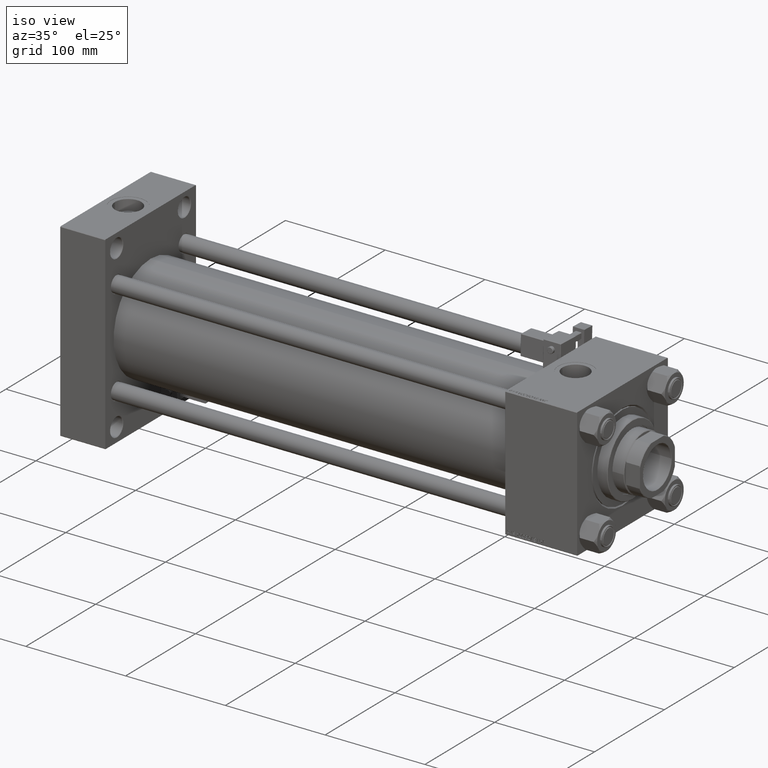
[diagram: clean part render]
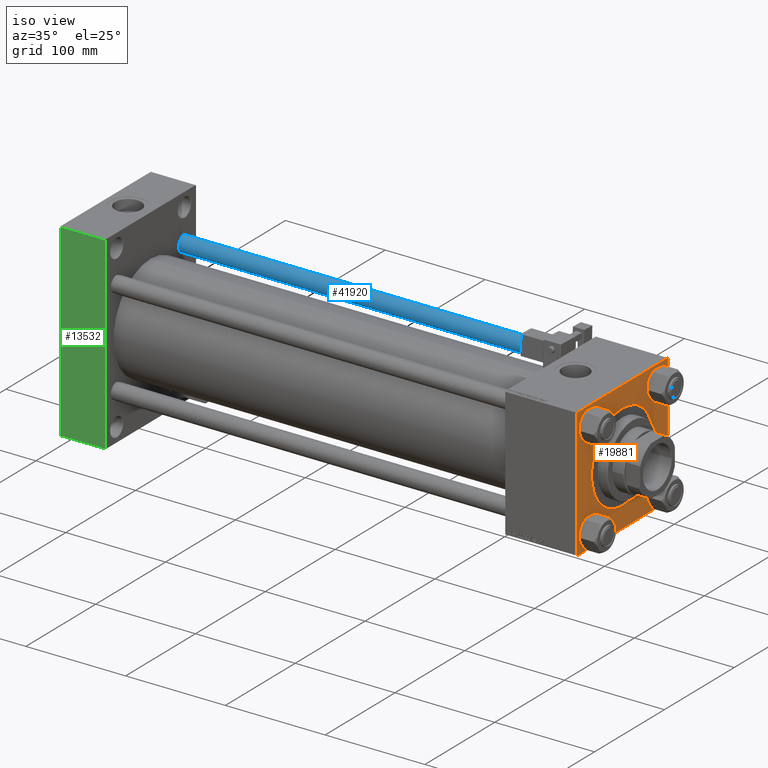
[diagram: same view with three faces highlighted in distinct colors, each labeled with its STEP entity id]
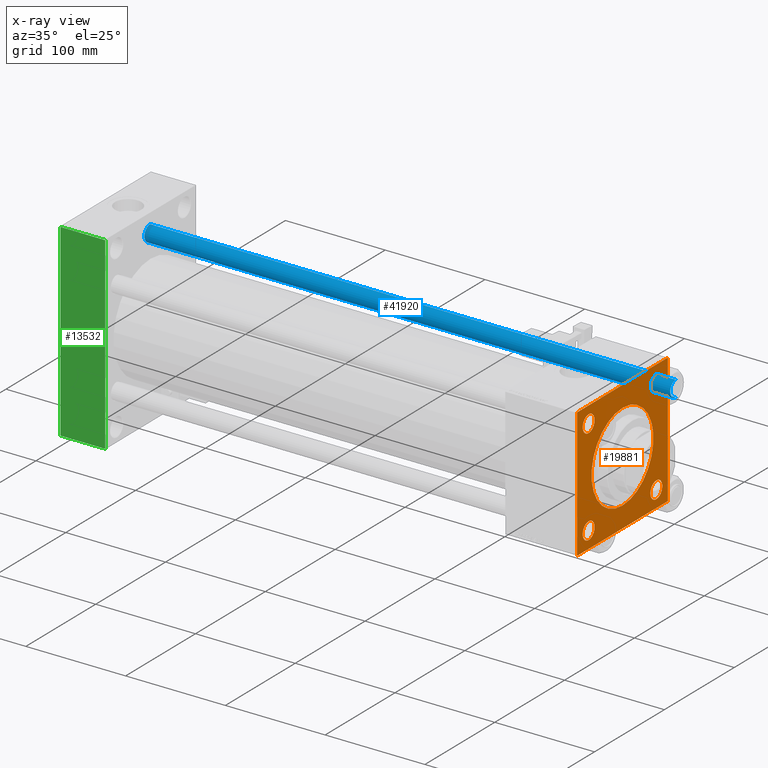
[diagram: x-ray of the same camera — body ghosted, the three highlighted faces saturated]
A machine part, iso view with three faces highlighted in distinct colors.
The next image is the same camera in x-ray (body ghosted, the three faces saturated) — at least one of them is partly hidden behind the body in this view.
Their STEP definitions:

[orange] entity #19881 — the highlighted planar face has unit normal (-1, 0, 0).
#311 = VECTOR ( 'NONE', #9528, 1000.000000000000114 ) ;
#572 = EDGE_CURVE ( 'NONE', #23882, #44154, #1061, .T. ) ;
#805 = VECTOR ( 'NONE', #3308, 1000.000000000000114 ) ;
#1002 = CARTESIAN_POINT ( 'NONE',  ( 518.0000000000000000, 64.49999999999991473, -64.99999999999998579 ) ) ;
#1061 = LINE ( 'NONE', #8296, #7401 ) ;
#1112 = EDGE_CURVE ( 'NONE', #34950, #22905, #35689, .T. ) ;
#1323 = DIRECTION ( 'NONE',  ( -0.000000000000000000, 0.7071067811865474617, 0.7071067811865474617 ) ) ;
#1525 = VECTOR ( 'NONE', #46438, 1000.000000000000000 ) ;
#2130 = CIRCLE ( 'NONE', #9215, 8.499999999999896971 ) ;
#2458 = EDGE_CURVE ( 'NONE', #51638, #22957, #49739, .T. ) ;
#3199 = CARTESIAN_POINT ( 'NONE',  ( 518.0000000000000000, 0.000000000000000000, 0.000000000000000000 ) ) ;
#3228 = EDGE_CURVE ( 'NONE', #37605, #6852, #47098, .T. ) ;
#3308 = DIRECTION ( 'NONE',  ( 0.000000000000000000, -0.7071067811865474617, 0.7071067811865474617 ) ) ;
#3376 = CARTESIAN_POINT ( 'NONE',  ( 518.0000000000000000, 0.000000000000000000, 0.000000000000000000 ) ) ;
#3460 = DIRECTION ( 'NONE',  ( 0.000000000000000000, 0.000000000000000000, 1.000000000000000000 ) ) ;
#3675 = AXIS2_PLACEMENT_3D ( 'NONE', #3376, #50434, #3460 ) ;
#4008 = ORIENTED_EDGE ( 'NONE', *, *, #18489, .T. ) ;
#4085 = DIRECTION ( 'NONE',  ( -0.000000000000000000, 0.000000000000000000, 1.000000000000000000 ) ) ;
#4883 = CARTESIAN_POINT ( 'NONE',  ( 518.0000000000000000, -64.49999999999991473, -65.00000000000001421 ) ) ;
#5188 = PLANE ( 'NONE',  #41820 ) ;
#5866 = DIRECTION ( 'NONE',  ( -1.000000000000000000, 0.000000000000000000, -0.000000000000000000 ) ) ;
#6092 = ORIENTED_EDGE ( 'NONE', *, *, #47759, .T. ) ;
#6273 = ORIENTED_EDGE ( 'NONE', *, *, #3228, .T. ) ;
#6550 = ORIENTED_EDGE ( 'NONE', *, *, #42842, .T. ) ;
#6741 = CARTESIAN_POINT ( 'NONE',  ( 518.0000000000000000, -48.44999999999999574, -48.45000000000003126 ) ) ;
#6852 = VERTEX_POINT ( 'NONE', #37609 ) ;
#7401 = VECTOR ( 'NONE', #42617, 1000.000000000000000 ) ;
#7478 = VECTOR ( 'NONE', #1323, 1000.000000000000114 ) ;
#8060 = CARTESIAN_POINT ( 'NONE',  ( 518.0000000000000000, -64.50000000000002842, 65.00000000000000000 ) ) ;
#8089 = CARTESIAN_POINT ( 'NONE',  ( 518.0000000000000000, -48.44999999999999574, 39.95000000000013074 ) ) ;
#8296 = CARTESIAN_POINT ( 'NONE',  ( 518.0000000000000000, 65.00000000000002842, -64.99999999999998579 ) ) ;
#8858 = EDGE_CURVE ( 'NONE', #54801, #11376, #52658, .T. ) ;
#8945 = CARTESIAN_POINT ( 'NONE',  ( 518.0000000000000000, 65.00000000000002842, 64.50000000000001421 ) ) ;
#8969 = ORIENTED_EDGE ( 'NONE', *, *, #13089, .T. ) ;
#9215 = AXIS2_PLACEMENT_3D ( 'NONE', #6741, #23631, #40521 ) ;
#9528 = DIRECTION ( 'NONE',  ( -0.000000000000000000, -0.7071067811865573427, -0.7071067811865376918 ) ) ;
#9854 = CIRCLE ( 'NONE', #3675, 44.25000000000006395 ) ;
#10231 = EDGE_CURVE ( 'NONE', #22905, #34950, #12936, .T. ) ;
#10276 = EDGE_LOOP ( 'NONE', ( #6092, #29891 ) ) ;
#11376 = VERTEX_POINT ( 'NONE', #49866 ) ;
#11391 = CARTESIAN_POINT ( 'NONE',  ( 518.0000000000000000, -48.44999999999999574, 56.94999999999992468 ) ) ;
#11973 = CIRCLE ( 'NONE', #50030, 8.499999999999896971 ) ;
#12196 = EDGE_LOOP ( 'NONE', ( #16599, #21312 ) ) ;
#12386 = EDGE_LOOP ( 'NONE', ( #38188, #8969, #48483, #46563, #15065, #48099, #44861, #6550 ) ) ;
#12600 = DIRECTION ( 'NONE',  ( 0.000000000000000000, 0.000000000000000000, 1.000000000000000000 ) ) ;
#12936 = CIRCLE ( 'NONE', #35050, 8.499999999999896971 ) ;
#13089 = EDGE_CURVE ( 'NONE', #20399, #44154, #30080, .T. ) ;
#13494 = DIRECTION ( 'NONE',  ( -1.000000000000000000, 0.000000000000000000, -0.000000000000000000 ) ) ;
#14232 = LINE ( 'NONE', #51622, #311 ) ;
#14241 = EDGE_CURVE ( 'NONE', #46400, #30360, #38898, .T. ) ;
#14368 = AXIS2_PLACEMENT_3D ( 'NONE', #49600, #49342, #41286 ) ;
#14527 = CARTESIAN_POINT ( 'NONE',  ( 518.0000000000000000, 65.00000000000002842, -64.49999999999987210 ) ) ;
#15065 = ORIENTED_EDGE ( 'NONE', *, *, #44013, .F. ) ;
#15953 = VERTEX_POINT ( 'NONE', #8945 ) ;
#16486 = DIRECTION ( 'NONE',  ( -1.000000000000000000, 0.000000000000000000, -0.000000000000000000 ) ) ;
#16599 = ORIENTED_EDGE ( 'NONE', *, *, #10231, .T. ) ;
#17027 = EDGE_CURVE ( 'NONE', #11376, #54801, #9854, .T. ) ;
#18454 = ORIENTED_EDGE ( 'NONE', *, *, #8858, .T. ) ;
#18489 = EDGE_CURVE ( 'NONE', #22957, #51638, #29355, .T. ) ;
#19881 = ADVANCED_FACE ( 'NONE', ( #42303, #47286, #46454, #42569, #25942, #42849 ), #5188, .F. ) ;
#20107 = DIRECTION ( 'NONE',  ( 0.000000000000000000, 0.000000000000000000, 1.000000000000000000 ) ) ;
#20399 = VERTEX_POINT ( 'NONE', #22021 ) ;
#20895 = CARTESIAN_POINT ( 'NONE',  ( 518.0000000000000000, -64.99999999999998579, 65.00000000000000000 ) ) ;
#21312 = ORIENTED_EDGE ( 'NONE', *, *, #1112, .T. ) ;
#22021 = CARTESIAN_POINT ( 'NONE',  ( 518.0000000000000000, -64.99999999999998579, -64.49999999999997158 ) ) ;
#22082 = CARTESIAN_POINT ( 'NONE',  ( 518.0000000000000000, 0.000000000000000000, 0.000000000000000000 ) ) ;
#22155 = EDGE_CURVE ( 'NONE', #6852, #37605, #2130, .T. ) ;
#22479 = VECTOR ( 'NONE', #47405, 1000.000000000000000 ) ;
#22905 = VERTEX_POINT ( 'NONE', #35817 ) ;
#22957 = VERTEX_POINT ( 'NONE', #8089 ) ;
#23631 = DIRECTION ( 'NONE',  ( -1.000000000000000000, 0.000000000000000000, -0.000000000000000000 ) ) ;
#23882 = VERTEX_POINT ( 'NONE', #1002 ) ;
#24080 = CARTESIAN_POINT ( 'NONE',  ( 518.0000000000000000, 64.50000000000002842, 65.00000000000001421 ) ) ;
#24985 = DIRECTION ( 'NONE',  ( -1.000000000000000000, 0.000000000000000000, -0.000000000000000000 ) ) ;
#25586 = LINE ( 'NONE', #20895, #43086 ) ;
#25772 = EDGE_CURVE ( 'NONE', #23882, #32877, #43167, .T. ) ;
#25864 = CARTESIAN_POINT ( 'NONE',  ( 518.0000000000000000, 48.45000000000000995, -48.45000000000001705 ) ) ;
#25942 = FACE_BOUND ( 'NONE', #44023, .T. ) ;
#27030 = AXIS2_PLACEMENT_3D ( 'NONE', #3199, #16486, #20107 ) ;
#27723 = EDGE_CURVE ( 'NONE', #38244, #51208, #11973, .T. ) ;
#27962 = LINE ( 'NONE', #24080, #805 ) ;
#29355 = CIRCLE ( 'NONE', #14368, 8.499999999999896971 ) ;
#29645 = CARTESIAN_POINT ( 'NONE',  ( 518.0000000000000000, 48.45000000000000995, -39.95000000000011653 ) ) ;
#29891 = ORIENTED_EDGE ( 'NONE', *, *, #27723, .T. ) ;
#30080 = LINE ( 'NONE', #4883, #1525 ) ;
#30360 = VERTEX_POINT ( 'NONE', #8060 ) ;
#30411 = CARTESIAN_POINT ( 'NONE',  ( 518.0000000000000000, 65.00000000000002842, -64.49999999999987210 ) ) ;
#30600 = CARTESIAN_POINT ( 'NONE',  ( 518.0000000000000000, 48.45000000000000995, 48.45000000000001705 ) ) ;
#31254 = ORIENTED_EDGE ( 'NONE', *, *, #22155, .T. ) ;
#31976 = EDGE_CURVE ( 'NONE', #43802, #20399, #25586, .T. ) ;
#32246 = CIRCLE ( 'NONE', #44636, 8.499999999999896971 ) ;
#32877 = VERTEX_POINT ( 'NONE', #14527 ) ;
#32989 = EDGE_LOOP ( 'NONE', ( #6273, #31254 ) ) ;
#33907 = DIRECTION ( 'NONE',  ( 0.000000000000000000, 0.000000000000000000, 1.000000000000000000 ) ) ;
#34652 = LINE ( 'NONE', #51288, #22479 ) ;
#34950 = VERTEX_POINT ( 'NONE', #29645 ) ;
#35050 = AXIS2_PLACEMENT_3D ( 'NONE', #54359, #24985, #46054 ) ;
#35689 = CIRCLE ( 'NONE', #37411, 8.499999999999896971 ) ;
#35817 = CARTESIAN_POINT ( 'NONE',  ( 518.0000000000000000, 48.45000000000000995, -56.94999999999991047 ) ) ;
#36177 = DIRECTION ( 'NONE',  ( 0.000000000000000000, 0.000000000000000000, 1.000000000000000000 ) ) ;
#36251 = ORIENTED_EDGE ( 'NONE', *, *, #2458, .T. ) ;
#37411 = AXIS2_PLACEMENT_3D ( 'NONE', #25864, #38323, #33907 ) ;
#37605 = VERTEX_POINT ( 'NONE', #47649 ) ;
#37609 = CARTESIAN_POINT ( 'NONE',  ( 518.0000000000000000, -48.44999999999999574, -39.95000000000013074 ) ) ;
#37775 = DIRECTION ( 'NONE',  ( 0.000000000000000000, 0.000000000000000000, -1.000000000000000000 ) ) ;
#38188 = ORIENTED_EDGE ( 'NONE', *, *, #31976, .T. ) ;
#38244 = VERTEX_POINT ( 'NONE', #44940 ) ;
#38323 = DIRECTION ( 'NONE',  ( -1.000000000000000000, 0.000000000000000000, -0.000000000000000000 ) ) ;
#38668 = CARTESIAN_POINT ( 'NONE',  ( 518.0000000000000000, 48.45000000000000995, 39.95000000000011653 ) ) ;
#38898 = LINE ( 'NONE', #54708, #39483 ) ;
#39483 = VECTOR ( 'NONE', #42774, 1000.000000000000000 ) ;
#39999 = AXIS2_PLACEMENT_3D ( 'NONE', #47699, #5866, #47409 ) ;
#40362 = EDGE_CURVE ( 'NONE', #15953, #46400, #27962, .T. ) ;
#40521 = DIRECTION ( 'NONE',  ( 0.000000000000000000, 0.000000000000000000, 1.000000000000000000 ) ) ;
#41286 = DIRECTION ( 'NONE',  ( 0.000000000000000000, 0.000000000000000000, 1.000000000000000000 ) ) ;
#41820 = AXIS2_PLACEMENT_3D ( 'NONE', #22082, #13494, #4085 ) ;
#42245 = CARTESIAN_POINT ( 'NONE',  ( 518.0000000000000000, -64.49999999999991473, -65.00000000000001421 ) ) ;
#42303 = FACE_BOUND ( 'NONE', #32989, .T. ) ;
#42516 = DIRECTION ( 'NONE',  ( -1.000000000000000000, 0.000000000000000000, -0.000000000000000000 ) ) ;
#42569 = FACE_BOUND ( 'NONE', #46831, .T. ) ;
#42617 = DIRECTION ( 'NONE',  ( 0.000000000000000000, -1.000000000000000000, -2.135044278125300850E-16 ) ) ;
#42774 = DIRECTION ( 'NONE',  ( 0.000000000000000000, -1.000000000000000000, -1.067522139062650425E-16 ) ) ;
#42842 = EDGE_CURVE ( 'NONE', #30360, #43802, #14232, .T. ) ;
#42849 = FACE_OUTER_BOUND ( 'NONE', #12386, .T. ) ;
#43086 = VECTOR ( 'NONE', #37775, 1000.000000000000000 ) ;
#43167 = LINE ( 'NONE', #30411, #7478 ) ;
#43802 = VERTEX_POINT ( 'NONE', #54622 ) ;
#43897 = CARTESIAN_POINT ( 'NONE',  ( 518.0000000000000000, -48.44999999999999574, -48.45000000000003126 ) ) ;
#44013 = EDGE_CURVE ( 'NONE', #15953, #32877, #34652, .T. ) ;
#44023 = EDGE_LOOP ( 'NONE', ( #18454, #53349 ) ) ;
#44031 = CARTESIAN_POINT ( 'NONE',  ( 518.0000000000000000, 0.000000000000000000, -44.25000000000006395 ) ) ;
#44154 = VERTEX_POINT ( 'NONE', #42245 ) ;
#44197 = CARTESIAN_POINT ( 'NONE',  ( 518.0000000000000000, 64.50000000000002842, 65.00000000000001421 ) ) ;
#44636 = AXIS2_PLACEMENT_3D ( 'NONE', #30600, #42516, #12600 ) ;
#44861 = ORIENTED_EDGE ( 'NONE', *, *, #14241, .T. ) ;
#44940 = CARTESIAN_POINT ( 'NONE',  ( 518.0000000000000000, 48.45000000000000995, 56.94999999999991047 ) ) ;
#46054 = DIRECTION ( 'NONE',  ( 0.000000000000000000, 0.000000000000000000, 1.000000000000000000 ) ) ;
#46400 = VERTEX_POINT ( 'NONE', #44197 ) ;
#46438 = DIRECTION ( 'NONE',  ( 0.000000000000000000, 0.7071067811865672237, -0.7071067811865279218 ) ) ;
#46454 = FACE_BOUND ( 'NONE', #10276, .T. ) ;
#46563 = ORIENTED_EDGE ( 'NONE', *, *, #25772, .T. ) ;
#46831 = EDGE_LOOP ( 'NONE', ( #4008, #36251 ) ) ;
#47098 = CIRCLE ( 'NONE', #54185, 8.499999999999896971 ) ;
#47286 = FACE_BOUND ( 'NONE', #12196, .T. ) ;
#47405 = DIRECTION ( 'NONE',  ( 0.000000000000000000, 0.000000000000000000, -1.000000000000000000 ) ) ;
#47409 = DIRECTION ( 'NONE',  ( 0.000000000000000000, 0.000000000000000000, 1.000000000000000000 ) ) ;
#47649 = CARTESIAN_POINT ( 'NONE',  ( 518.0000000000000000, -48.44999999999999574, -56.94999999999992468 ) ) ;
#47699 = CARTESIAN_POINT ( 'NONE',  ( 518.0000000000000000, -48.44999999999999574, 48.45000000000003126 ) ) ;
#47759 = EDGE_CURVE ( 'NONE', #51208, #38244, #32246, .T. ) ;
#48099 = ORIENTED_EDGE ( 'NONE', *, *, #40362, .T. ) ;
#48483 = ORIENTED_EDGE ( 'NONE', *, *, #572, .F. ) ;
#48603 = DIRECTION ( 'NONE',  ( 0.000000000000000000, 0.000000000000000000, 1.000000000000000000 ) ) ;
#49202 = CARTESIAN_POINT ( 'NONE',  ( 518.0000000000000000, 48.45000000000000995, 48.45000000000001705 ) ) ;
#49342 = DIRECTION ( 'NONE',  ( -1.000000000000000000, 0.000000000000000000, -0.000000000000000000 ) ) ;
#49476 = DIRECTION ( 'NONE',  ( -1.000000000000000000, 0.000000000000000000, -0.000000000000000000 ) ) ;
#49600 = CARTESIAN_POINT ( 'NONE',  ( 518.0000000000000000, -48.44999999999999574, 48.45000000000003126 ) ) ;
#49739 = CIRCLE ( 'NONE', #39999, 8.499999999999896971 ) ;
#49866 = CARTESIAN_POINT ( 'NONE',  ( 518.0000000000000000, 5.419062086227046872E-15, 44.25000000000006395 ) ) ;
#50030 = AXIS2_PLACEMENT_3D ( 'NONE', #49202, #49476, #36177 ) ;
#50434 = DIRECTION ( 'NONE',  ( -1.000000000000000000, 0.000000000000000000, -0.000000000000000000 ) ) ;
#51208 = VERTEX_POINT ( 'NONE', #38668 ) ;
#51288 = CARTESIAN_POINT ( 'NONE',  ( 518.0000000000000000, 65.00000000000002842, 65.00000000000001421 ) ) ;
#51622 = CARTESIAN_POINT ( 'NONE',  ( 518.0000000000000000, -64.99999999999998579, 64.50000000000005684 ) ) ;
#51638 = VERTEX_POINT ( 'NONE', #11391 ) ;
#52470 = DIRECTION ( 'NONE',  ( -1.000000000000000000, 0.000000000000000000, -0.000000000000000000 ) ) ;
#52658 = CIRCLE ( 'NONE', #27030, 44.25000000000006395 ) ;
#53349 = ORIENTED_EDGE ( 'NONE', *, *, #17027, .T. ) ;
#54185 = AXIS2_PLACEMENT_3D ( 'NONE', #43897, #52470, #48603 ) ;
#54359 = CARTESIAN_POINT ( 'NONE',  ( 518.0000000000000000, 48.45000000000000995, -48.45000000000001705 ) ) ;
#54622 = CARTESIAN_POINT ( 'NONE',  ( 518.0000000000000000, -64.99999999999998579, 64.50000000000005684 ) ) ;
#54708 = CARTESIAN_POINT ( 'NONE',  ( 518.0000000000000000, 65.00000000000002842, 65.00000000000001421 ) ) ;
#54801 = VERTEX_POINT ( 'NONE', #44031 ) ;

[blue] entity #41920 — the highlighted cylindrical surface (edge-blend (fillet) strip) has radius 8 mm, axis along (1, 0, 0).
#711 = DIRECTION ( 'NONE',  ( 0.000000000000000000, 0.000000000000000000, -1.000000000000000000 ) ) ;
#1033 = VERTEX_POINT ( 'NONE', #11526 ) ;
#1206 = ORIENTED_EDGE ( 'NONE', *, *, #7679, .T. ) ;
#1222 = CARTESIAN_POINT ( 'NONE',  ( 8.000000000000000000, 9.797174393178825657E-16, 0.5000000000000559552 ) ) ;
#2764 = VERTEX_POINT ( 'NONE', #13214 ) ;
#5222 = EDGE_CURVE ( 'NONE', #28798, #1033, #42748, .T. ) ;
#5453 = VERTEX_POINT ( 'NONE', #7878 ) ;
#5622 = CYLINDRICAL_SURFACE ( 'NONE', #22177, 8.000000000000000000 ) ;
#6241 = CARTESIAN_POINT ( 'NONE',  ( 0.000000000000000000, 0.000000000000000000, 0.5000000000000559552 ) ) ;
#7679 = EDGE_CURVE ( 'NONE', #2764, #5453, #29618, .T. ) ;
#7830 = VECTOR ( 'NONE', #32670, 1000.000000000000000 ) ;
#7878 = CARTESIAN_POINT ( 'NONE',  ( 8.000000000000000000, 9.797174393178825657E-16, 527.5000000000001137 ) ) ;
#10937 = DIRECTION ( 'NONE',  ( 1.000000000000000000, 0.000000000000000000, 0.000000000000000000 ) ) ;
#11526 = CARTESIAN_POINT ( 'NONE',  ( -8.000000000000000000, 0.000000000000000000, 0.5000000000000559552 ) ) ;
#13214 = CARTESIAN_POINT ( 'NONE',  ( -8.000000000000000000, 0.000000000000000000, 527.5000000000001137 ) ) ;
#13953 = CARTESIAN_POINT ( 'NONE',  ( 0.000000000000000000, 0.000000000000000000, 528.0000000000000000 ) ) ;
#15516 = AXIS2_PLACEMENT_3D ( 'NONE', #25639, #711, #35057 ) ;
#16383 = DIRECTION ( 'NONE',  ( -0.000000000000000000, -0.000000000000000000, -1.000000000000000000 ) ) ;
#22177 = AXIS2_PLACEMENT_3D ( 'NONE', #13953, #30830, #47740 ) ;
#24361 = LINE ( 'NONE', #51131, #7830 ) ;
#25639 = CARTESIAN_POINT ( 'NONE',  ( 0.000000000000000000, 0.000000000000000000, 527.5000000000001137 ) ) ;
#28791 = ORIENTED_EDGE ( 'NONE', *, *, #5222, .T. ) ;
#28798 = VERTEX_POINT ( 'NONE', #1222 ) ;
#29618 = CIRCLE ( 'NONE', #15516, 8.000000000000000000 ) ;
#29806 = EDGE_LOOP ( 'NONE', ( #1206, #31429, #28791, #37365 ) ) ;
#30281 = EDGE_CURVE ( 'NONE', #2764, #1033, #37394, .T. ) ;
#30830 = DIRECTION ( 'NONE',  ( -0.000000000000000000, -0.000000000000000000, -1.000000000000000000 ) ) ;
#31429 = ORIENTED_EDGE ( 'NONE', *, *, #35110, .T. ) ;
#32670 = DIRECTION ( 'NONE',  ( -0.000000000000000000, -0.000000000000000000, -1.000000000000000000 ) ) ;
#35057 = DIRECTION ( 'NONE',  ( 1.000000000000000000, 0.000000000000000000, 0.000000000000000000 ) ) ;
#35110 = EDGE_CURVE ( 'NONE', #5453, #28798, #24361, .T. ) ;
#37365 = ORIENTED_EDGE ( 'NONE', *, *, #30281, .F. ) ;
#37394 = LINE ( 'NONE', #54310, #50953 ) ;
#41920 = ADVANCED_FACE ( 'NONE', ( #51894 ), #5622, .T. ) ;
#42748 = CIRCLE ( 'NONE', #49845, 8.000000000000000000 ) ;
#44728 = DIRECTION ( 'NONE',  ( -0.000000000000000000, -0.000000000000000000, 1.000000000000000000 ) ) ;
#47740 = DIRECTION ( 'NONE',  ( -1.000000000000000000, 0.000000000000000000, 0.000000000000000000 ) ) ;
#49845 = AXIS2_PLACEMENT_3D ( 'NONE', #6241, #44728, #10937 ) ;
#50953 = VECTOR ( 'NONE', #16383, 1000.000000000000000 ) ;
#51131 = CARTESIAN_POINT ( 'NONE',  ( 8.000000000000000000, 9.797174393178825657E-16, 528.0000000000000000 ) ) ;
#51894 = FACE_OUTER_BOUND ( 'NONE', #29806, .T. ) ;
#54310 = CARTESIAN_POINT ( 'NONE',  ( -8.000000000000000000, 0.000000000000000000, 528.0000000000000000 ) ) ;

[green] entity #13532 — the highlighted planar face has unit normal (0, 1, 0).
#258 = CARTESIAN_POINT ( 'NONE',  ( 45.00000000000000000, -64.99999999999998579, 94.49999999999992895 ) ) ;
#599 = EDGE_LOOP ( 'NONE', ( #20326, #26660, #31422, #3479 ) ) ;
#1721 = CARTESIAN_POINT ( 'NONE',  ( 0.000000000000000000, -64.99999999999998579, -94.50000000000004263 ) ) ;
#3479 = ORIENTED_EDGE ( 'NONE', *, *, #23984, .T. ) ;
#3765 = DIRECTION ( 'NONE',  ( 1.000000000000000000, 0.000000000000000000, 0.000000000000000000 ) ) ;
#6553 = CARTESIAN_POINT ( 'NONE',  ( 45.00000000000000000, -64.99999999999998579, 94.49999999999992895 ) ) ;
#7332 = CARTESIAN_POINT ( 'NONE',  ( 0.000000000000000000, -64.99999999999998579, 94.99999999999995737 ) ) ;
#7978 = CARTESIAN_POINT ( 'NONE',  ( 45.00000000000000000, -64.99999999999998579, -94.50000000000004263 ) ) ;
#13532 = ADVANCED_FACE ( 'NONE', ( #36105 ), #36637, .F. ) ;
#13871 = VECTOR ( 'NONE', #38601, 1000.000000000000000 ) ;
#13894 = VERTEX_POINT ( 'NONE', #7978 ) ;
#15423 = DIRECTION ( 'NONE',  ( -1.000000000000000000, 0.000000000000000000, 0.000000000000000000 ) ) ;
#15895 = DIRECTION ( 'NONE',  ( 0.000000000000000000, -0.000000000000000000, 1.000000000000000000 ) ) ;
#17116 = VECTOR ( 'NONE', #15423, 1000.000000000000000 ) ;
#17737 = EDGE_CURVE ( 'NONE', #48158, #13894, #20409, .T. ) ;
#20326 = ORIENTED_EDGE ( 'NONE', *, *, #21218, .T. ) ;
#20409 = LINE ( 'NONE', #37278, #40844 ) ;
#20829 = VERTEX_POINT ( 'NONE', #258 ) ;
#21218 = EDGE_CURVE ( 'NONE', #53145, #48158, #45544, .T. ) ;
#23554 = AXIS2_PLACEMENT_3D ( 'NONE', #36917, #53828, #15895 ) ;
#23984 = EDGE_CURVE ( 'NONE', #20829, #53145, #32013, .T. ) ;
#26660 = ORIENTED_EDGE ( 'NONE', *, *, #17737, .T. ) ;
#26838 = VECTOR ( 'NONE', #49163, 1000.000000000000000 ) ;
#31422 = ORIENTED_EDGE ( 'NONE', *, *, #51563, .F. ) ;
#32013 = LINE ( 'NONE', #6553, #17116 ) ;
#34448 = CARTESIAN_POINT ( 'NONE',  ( 0.000000000000000000, -64.99999999999998579, 94.49999999999992895 ) ) ;
#34726 = LINE ( 'NONE', #51359, #13871 ) ;
#36105 = FACE_OUTER_BOUND ( 'NONE', #599, .T. ) ;
#36637 = PLANE ( 'NONE',  #23554 ) ;
#36917 = CARTESIAN_POINT ( 'NONE',  ( 45.00000000000000000, -64.99999999999998579, 94.99999999999995737 ) ) ;
#37278 = CARTESIAN_POINT ( 'NONE',  ( 45.00000000000000000, -64.99999999999998579, -94.50000000000004263 ) ) ;
#38601 = DIRECTION ( 'NONE',  ( 0.000000000000000000, 0.000000000000000000, -1.000000000000000000 ) ) ;
#40844 = VECTOR ( 'NONE', #3765, 1000.000000000000000 ) ;
#45544 = LINE ( 'NONE', #7332, #26838 ) ;
#48158 = VERTEX_POINT ( 'NONE', #1721 ) ;
#49163 = DIRECTION ( 'NONE',  ( 0.000000000000000000, 0.000000000000000000, -1.000000000000000000 ) ) ;
#51359 = CARTESIAN_POINT ( 'NONE',  ( 45.00000000000000000, -64.99999999999998579, 94.99999999999995737 ) ) ;
#51563 = EDGE_CURVE ( 'NONE', #20829, #13894, #34726, .T. ) ;
#53145 = VERTEX_POINT ( 'NONE', #34448 ) ;
#53828 = DIRECTION ( 'NONE',  ( -0.000000000000000000, 1.000000000000000000, 0.000000000000000000 ) ) ;